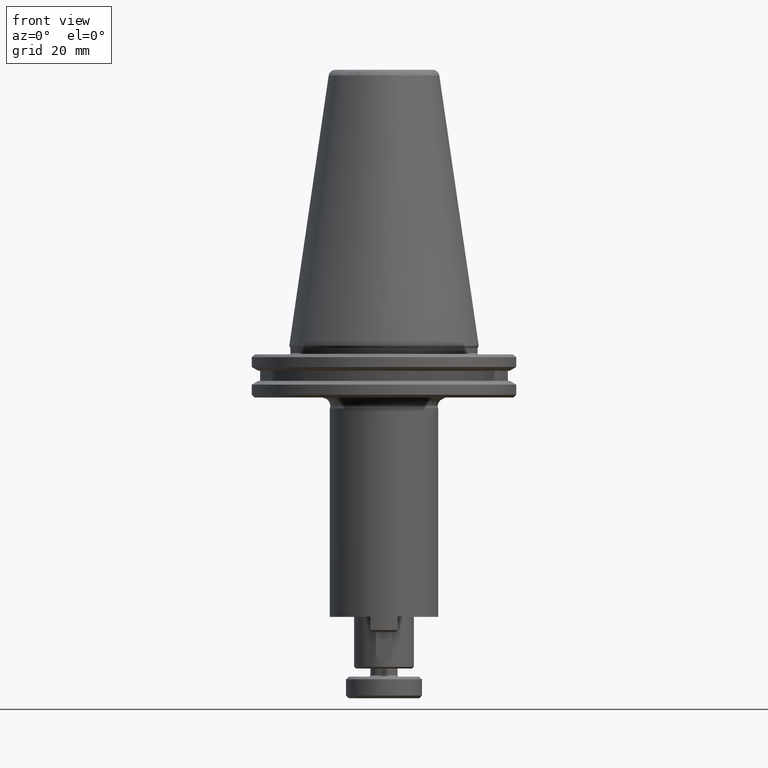
[diagram: clean part render]
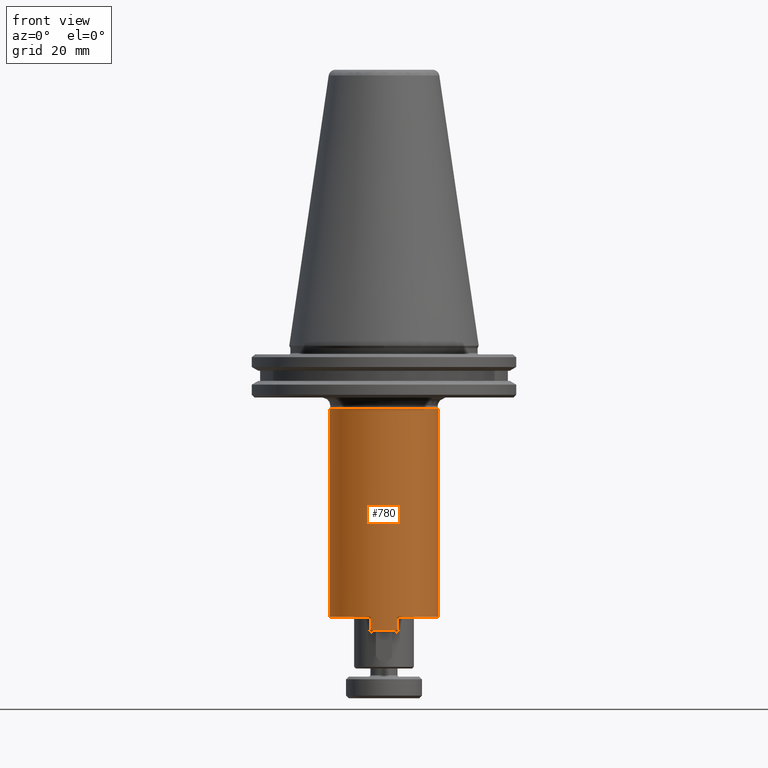
[diagram: same view with one face highlighted and labeled with its STEP entity id]
A machine part, front view. The second image highlights one B-rep face of the part: STEP entity #780.
In plain terms, the highlighted cylindrical surface (partial cylindrical patch) has radius 20 mm, axis along (0, 0, 1).
Its self-contained STEP definition (entity closure, byte-faithful):
#18 = EDGE_CURVE ( 'NONE', #1233, #1194, #1664, .T. ) ;
#143 = EDGE_CURVE ( 'NONE', #2611, #534, #2691, .T. ) ;
#186 = ORIENTED_EDGE ( 'NONE', *, *, #1642, .T. ) ;
#196 = CARTESIAN_POINT ( 'NONE',  ( 69.44000914255849500, 102.4230254990840100, -1.348572653919489800 ) ) ;
#230 = AXIS2_PLACEMENT_3D ( 'NONE', #1344, #3041, #1098 ) ;
#345 = DIRECTION ( 'NONE',  ( 0.0000000000000000000, 0.0000000000000000000, 1.000000000000000000 ) ) ;
#408 = VECTOR ( 'NONE', #1491, 1000.000000000000000 ) ;
#436 = ORIENTED_EDGE ( 'NONE', *, *, #1469, .F. ) ;
#487 = CYLINDRICAL_SURFACE ( 'NONE', #230, 20.00000000000000400 ) ;
#489 = ORIENTED_EDGE ( 'NONE', *, *, #18, .T. ) ;
#534 = VERTEX_POINT ( 'NONE', #2011 ) ;
#626 = CARTESIAN_POINT ( 'NONE',  ( 89.44000914255849500, 102.4230254990840100, -1.348572650319491000 ) ) ;
#756 = CARTESIAN_POINT ( 'NONE',  ( 109.4400091425584900, 102.4230254990840100, -1.348572650319491000 ) ) ;
#780 = ADVANCED_FACE ( 'NONE', ( #1263 ), #487, .T. ) ;
#877 = DIRECTION ( 'NONE',  ( 1.000000000000000000, 0.0000000000000000000, 0.0000000000000000000 ) ) ;
#883 = DIRECTION ( 'NONE',  ( 0.0000000000000000000, 0.0000000000000000000, 1.000000000000000000 ) ) ;
#945 = DIRECTION ( 'NONE',  ( 0.0000000000000000000, 0.0000000000000000000, 1.000000000000000000 ) ) ;
#965 = DIRECTION ( 'NONE',  ( 0.0000000000000000000, 0.0000000000000000000, 1.000000000000000000 ) ) ;
#999 = CARTESIAN_POINT ( 'NONE',  ( 69.44000914234060000, 102.4230254990840100, 75.47439438959081300 ) ) ;
#1031 = CARTESIAN_POINT ( 'NONE',  ( 84.44000914221169300, 83.05810876802030400, -6.148572649007014900 ) ) ;
#1047 = CARTESIAN_POINT ( 'NONE',  ( 94.44000914370400300, 83.05810876834269200, -6.148572649119491200 ) ) ;
#1098 = DIRECTION ( 'NONE',  ( 1.000000000000000000, 0.0000000000000000000, 0.0000000000000000000 ) ) ;
#1114 = ORIENTED_EDGE ( 'NONE', *, *, #1644, .T. ) ;
#1194 = VERTEX_POINT ( 'NONE', #1047 ) ;
#1233 = VERTEX_POINT ( 'NONE', #1031 ) ;
#1246 = CARTESIAN_POINT ( 'NONE',  ( 84.44000914192113800, 83.05810876821148300, -6.148572649119491200 ) ) ;
#1263 = FACE_OUTER_BOUND ( 'NONE', #1431, .T. ) ;
#1282 = VECTOR ( 'NONE', #883, 1000.000000000000000 ) ;
#1323 = ORIENTED_EDGE ( 'NONE', *, *, #2917, .T. ) ;
#1327 = AXIS2_PLACEMENT_3D ( 'NONE', #626, #2337, #877 ) ;
#1344 = CARTESIAN_POINT ( 'NONE',  ( 89.44000914255849500, 102.4230254990840100, -6.148572649119491200 ) ) ;
#1387 = CARTESIAN_POINT ( 'NONE',  ( 89.44000914255849500, 102.4230254990840100, 75.47439438964673300 ) ) ;
#1431 = EDGE_LOOP ( 'NONE', ( #436, #2720, #2969, #489, #186, #1114, #1645, #1323 ) ) ;
#1450 = CIRCLE ( 'NONE', #3020, 20.00000000027393900 ) ;
#1469 = EDGE_CURVE ( 'NONE', #2945, #2336, #1867, .T. ) ;
#1491 = DIRECTION ( 'NONE',  ( -0.0000000000000000000, -0.0000000000000000000, -1.000000000000000000 ) ) ;
#1565 = VECTOR ( 'NONE', #965, 1000.000000000000000 ) ;
#1635 = DIRECTION ( 'NONE',  ( -1.000000000000000000, 0.0000000000000000000, 0.0000000000000000000 ) ) ;
#1642 = EDGE_CURVE ( 'NONE', #1194, #3078, #2630, .T. ) ;
#1644 = EDGE_CURVE ( 'NONE', #3078, #2611, #1960, .T. ) ;
#1645 = ORIENTED_EDGE ( 'NONE', *, *, #143, .T. ) ;
#1657 = CARTESIAN_POINT ( 'NONE',  ( 84.44000914231450800, 83.05810876810993200, -1.348572650319485000 ) ) ;
#1664 = CIRCLE ( 'NONE', #2540, 20.00000000000000400 ) ;
#1709 = VECTOR ( 'NONE', #1803, 1000.000000000000000 ) ;
#1803 = DIRECTION ( 'NONE',  ( 0.0000000000000000000, 0.0000000000000000000, 1.000000000000000000 ) ) ;
#1867 = LINE ( 'NONE', #2294, #1709 ) ;
#1954 = CARTESIAN_POINT ( 'NONE',  ( 109.4400091425584900, 102.4230254990840100, -6.148572649119491200 ) ) ;
#1960 = CIRCLE ( 'NONE', #1327, 20.00000000000000400 ) ;
#1979 = DIRECTION ( 'NONE',  ( 1.000000000000000000, 0.0000000000000000000, 0.0000000000000000000 ) ) ;
#2011 = CARTESIAN_POINT ( 'NONE',  ( 109.4400091427701700, 102.4230254990840100, 75.47439438960702800 ) ) ;
#2167 = CIRCLE ( 'NONE', #2896, 20.00000000000000400 ) ;
#2294 = CARTESIAN_POINT ( 'NONE',  ( 69.44000914255849500, 102.4230254990840100, -6.148572649119491200 ) ) ;
#2336 = VERTEX_POINT ( 'NONE', #999 ) ;
#2337 = DIRECTION ( 'NONE',  ( 0.0000000000000000000, 0.0000000000000000000, 1.000000000000000000 ) ) ;
#2345 = CARTESIAN_POINT ( 'NONE',  ( 94.44000914484949800, 83.05810876863846200, -6.148572649119491200 ) ) ;
#2346 = EDGE_CURVE ( 'NONE', #2954, #1233, #2725, .T. ) ;
#2405 = CARTESIAN_POINT ( 'NONE',  ( 89.44000914255849500, 102.4230254990840100, -1.348572653919489800 ) ) ;
#2525 = EDGE_CURVE ( 'NONE', #2945, #2954, #2167, .T. ) ;
#2540 = AXIS2_PLACEMENT_3D ( 'NONE', #2587, #345, #1979 ) ;
#2587 = CARTESIAN_POINT ( 'NONE',  ( 89.44000914255849500, 102.4230254990840100, -6.148572649119489400 ) ) ;
#2611 = VERTEX_POINT ( 'NONE', #756 ) ;
#2630 = LINE ( 'NONE', #2345, #1282 ) ;
#2647 = DIRECTION ( 'NONE',  ( 1.000000000000000000, 0.0000000000000000000, 0.0000000000000000000 ) ) ;
#2691 = LINE ( 'NONE', #1954, #1565 ) ;
#2720 = ORIENTED_EDGE ( 'NONE', *, *, #2525, .T. ) ;
#2725 = LINE ( 'NONE', #1246, #408 ) ;
#2896 = AXIS2_PLACEMENT_3D ( 'NONE', #2405, #945, #2647 ) ;
#2917 = EDGE_CURVE ( 'NONE', #534, #2336, #1450, .T. ) ;
#2945 = VERTEX_POINT ( 'NONE', #196 ) ;
#2954 = VERTEX_POINT ( 'NONE', #1657 ) ;
#2969 = ORIENTED_EDGE ( 'NONE', *, *, #2346, .T. ) ;
#3020 = AXIS2_PLACEMENT_3D ( 'NONE', #1387, #3086, #1635 ) ;
#3041 = DIRECTION ( 'NONE',  ( 0.0000000000000000000, 0.0000000000000000000, 1.000000000000000000 ) ) ;
#3078 = VERTEX_POINT ( 'NONE', #3154 ) ;
#3086 = DIRECTION ( 'NONE',  ( 0.0000000000000000000, -0.0000000000000000000, -1.000000000000000000 ) ) ;
#3154 = CARTESIAN_POINT ( 'NONE',  ( 94.44000914343553200, 83.05810876827338500, -1.348572650319485000 ) ) ;